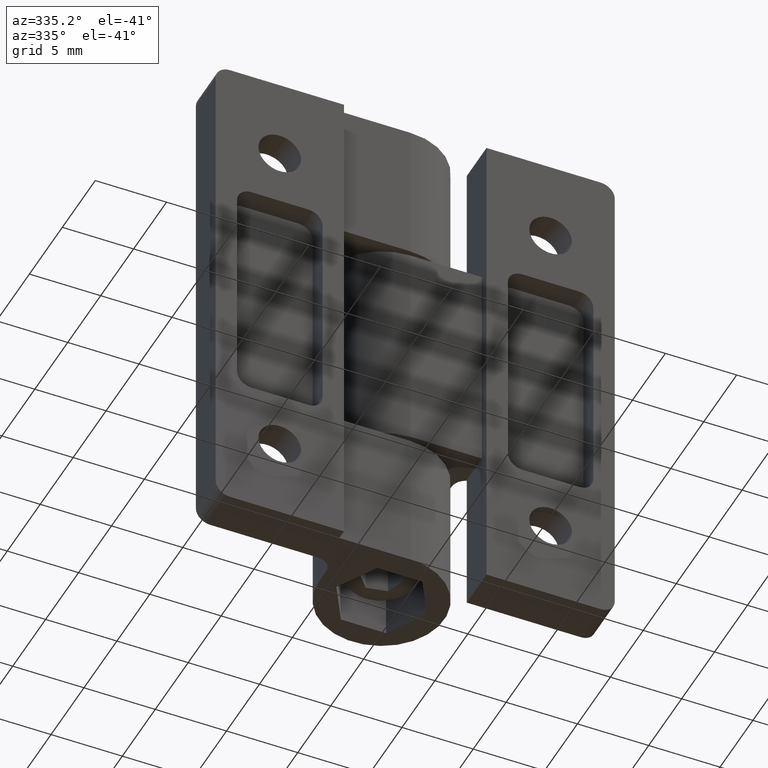
[diagram: clean part render]
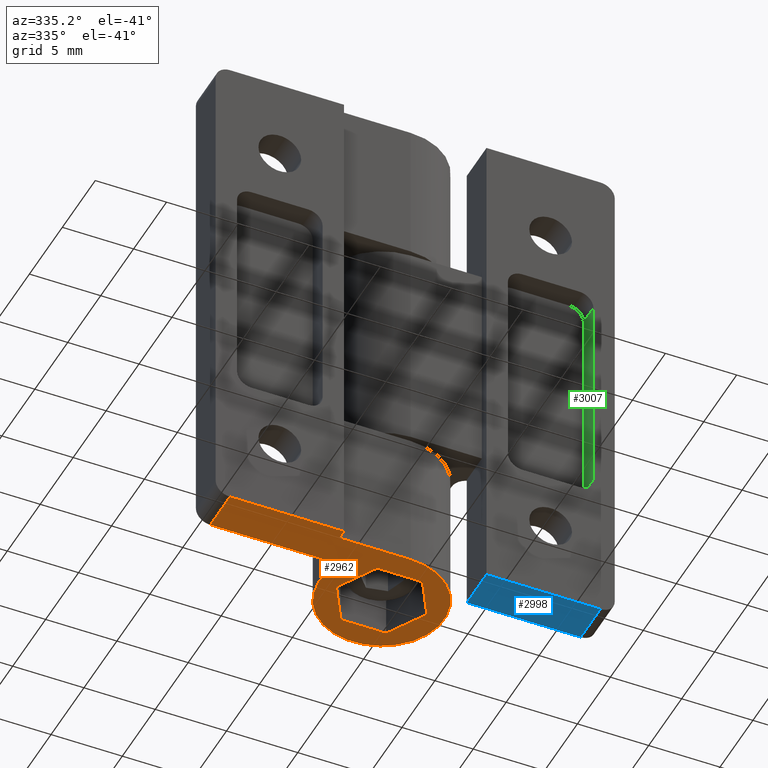
[diagram: same view with three faces highlighted in distinct colors, each labeled with its STEP entity id]
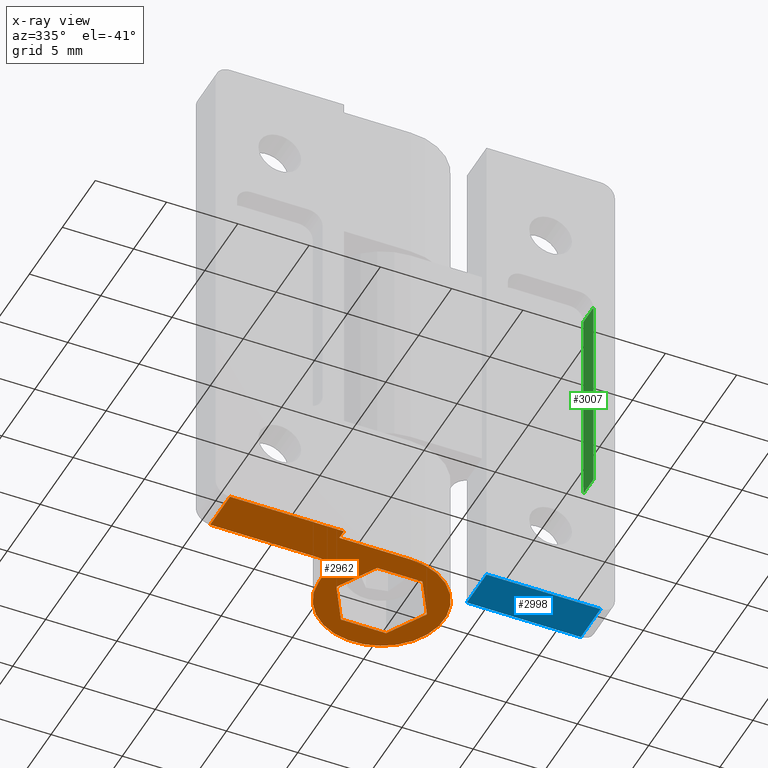
[diagram: x-ray of the same camera — body ghosted, the three highlighted faces saturated]
A machine part, auxiliary view with three faces highlighted in distinct colors.
The next image is the same camera in x-ray (body ghosted, the three faces saturated) — at least one of them is partly hidden behind the body in this view.
Their STEP definitions:

[orange] entity #2962 — the highlighted planar face has unit normal (0, 0, -1).
#320=FACE_BOUND('',#587,.T.);
#374=PLANE('',#3109);
#458=FACE_OUTER_BOUND('',#586,.T.);
#586=EDGE_LOOP('',(#2154,#2155,#2156,#2157,#2158,#2159,#2160,#2161));
#587=EDGE_LOOP('',(#2162,#2163,#2164,#2165,#2166,#2167));
#670=LINE('',#3745,#826);
#679=LINE('',#3766,#835);
#694=LINE('',#3816,#850);
#700=LINE('',#3832,#856);
#703=LINE('',#3838,#859);
#733=LINE('',#3944,#889);
#739=LINE('',#3955,#895);
#741=LINE('',#3959,#897);
#742=LINE('',#3962,#898);
#747=LINE('',#3971,#903);
#748=LINE('',#3973,#904);
#757=LINE('',#3991,#913);
#826=VECTOR('',#3219,3.);
#835=VECTOR('',#3234,7.6);
#850=VECTOR('',#3283,1.1);
#856=VECTOR('',#3301,5.);
#859=VECTOR('',#3306,0.7);
#889=VECTOR('',#3412,3.1754264805516);
#895=VECTOR('',#3422,3.1754264805515);
#897=VECTOR('',#3426,3.1754264805516);
#898=VECTOR('',#3429,3.17542648055159);
#903=VECTOR('',#3438,3.1754264805516);
#904=VECTOR('',#3441,3.1754264805515);
#913=VECTOR('',#3462,8.);
#989=CIRCLE('',#3041,1.);
#996=CIRCLE('',#3054,4.4);
#1055=VERTEX_POINT('',#3742);
#1056=VERTEX_POINT('',#3744);
#1065=VERTEX_POINT('',#3764);
#1071=VERTEX_POINT('',#3782);
#1083=VERTEX_POINT('',#3814);
#1085=VERTEX_POINT('',#3822);
#1087=VERTEX_POINT('',#3830);
#1089=VERTEX_POINT('',#3836);
#1126=VERTEX_POINT('',#3941);
#1127=VERTEX_POINT('',#3943);
#1130=VERTEX_POINT('',#3953);
#1131=VERTEX_POINT('',#3957);
#1132=VERTEX_POINT('',#3961);
#1134=VERTEX_POINT('',#3969);
#1453=EDGE_CURVE('',#1055,#1056,#670,.T.);
#1464=EDGE_CURVE('',#1055,#1065,#679,.T.);
#1473=EDGE_CURVE('',#1071,#1065,#989,.T.);
#1489=EDGE_CURVE('',#1071,#1083,#694,.T.);
#1493=EDGE_CURVE('',#1083,#1085,#996,.T.);
#1497=EDGE_CURVE('',#1085,#1087,#700,.T.);
#1500=EDGE_CURVE('',#1087,#1089,#703,.T.);
#1547=EDGE_CURVE('',#1127,#1126,#733,.T.);
#1553=EDGE_CURVE('',#1126,#1130,#739,.T.);
#1555=EDGE_CURVE('',#1130,#1131,#741,.T.);
#1556=EDGE_CURVE('',#1132,#1127,#742,.T.);
#1561=EDGE_CURVE('',#1131,#1134,#747,.T.);
#1562=EDGE_CURVE('',#1134,#1132,#748,.T.);
#1571=EDGE_CURVE('',#1089,#1056,#757,.T.);
#2154=ORIENTED_EDGE('',*,*,#1453,.F.);
#2155=ORIENTED_EDGE('',*,*,#1464,.T.);
#2156=ORIENTED_EDGE('',*,*,#1473,.F.);
#2157=ORIENTED_EDGE('',*,*,#1489,.T.);
#2158=ORIENTED_EDGE('',*,*,#1493,.T.);
#2159=ORIENTED_EDGE('',*,*,#1497,.T.);
#2160=ORIENTED_EDGE('',*,*,#1500,.T.);
#2161=ORIENTED_EDGE('',*,*,#1571,.T.);
#2162=ORIENTED_EDGE('',*,*,#1556,.T.);
#2163=ORIENTED_EDGE('',*,*,#1547,.T.);
#2164=ORIENTED_EDGE('',*,*,#1553,.T.);
#2165=ORIENTED_EDGE('',*,*,#1555,.T.);
#2166=ORIENTED_EDGE('',*,*,#1561,.T.);
#2167=ORIENTED_EDGE('',*,*,#1562,.T.);
#2962=ADVANCED_FACE('',(#458,#320),#374,.T.);
#3041=AXIS2_PLACEMENT_3D('',#3784,#3253,#3254);
#3054=AXIS2_PLACEMENT_3D('',#3824,#3292,#3293);
#3109=AXIS2_PLACEMENT_3D('',#3992,#3463,#3464);
#3219=DIRECTION('',(-6.12323399573677E-17,0.,-1.));
#3234=DIRECTION('',(1.,0.,5.78241158658936E-17));
#3253=DIRECTION('center_axis',(0.,1.,0.));
#3254=DIRECTION('ref_axis',(0.707106781186547,0.,-0.707106781186548));
#3283=DIRECTION('',(0.,0.,1.));
#3292=DIRECTION('center_axis',(0.,1.,0.));
#3293=DIRECTION('ref_axis',(1.,0.,0.));
#3301=DIRECTION('',(-1.,0.,8.32667268468867E-17));
#3306=DIRECTION('',(0.,0.,-1.));
#3412=DIRECTION('',(-0.500000000008138,0.,0.86602540377974));
#3422=DIRECTION('',(-1.,0.,-9.39594531522394E-12));
#3426=DIRECTION('',(-0.499999999991863,0.,-0.866025403789137));
#3429=DIRECTION('',(0.499999999991862,0.,0.866025403789137));
#3438=DIRECTION('',(0.500000000008137,0.,-0.866025403779741));
#3441=DIRECTION('',(1.,0.,9.39577050043426E-12));
#3462=DIRECTION('',(-1.,0.,1.71193772834421E-33));
#3463=DIRECTION('center_axis',(0.,1.,0.));
#3464=DIRECTION('ref_axis',(1.,0.,0.));
#3742=CARTESIAN_POINT('',(1.,18.,3.));
#3744=CARTESIAN_POINT('',(1.,18.,-1.71193772834421E-33));
#3745=CARTESIAN_POINT('',(1.,18.,2.375));
#3764=CARTESIAN_POINT('',(8.6,18.,3.));
#3766=CARTESIAN_POINT('',(9.6,18.,3.));
#3782=CARTESIAN_POINT('',(9.6,18.,4.));
#3784=CARTESIAN_POINT('Origin',(8.6,18.,4.));
#3814=CARTESIAN_POINT('',(9.6,18.,5.1));
#3816=CARTESIAN_POINT('',(9.6,18.,5.1));
#3822=CARTESIAN_POINT('',(14.,18.,0.699999999999999));
#3824=CARTESIAN_POINT('Origin',(14.,18.,5.1));
#3830=CARTESIAN_POINT('',(9.,18.,0.7));
#3832=CARTESIAN_POINT('',(9.,18.,0.7));
#3836=CARTESIAN_POINT('',(9.,18.,0.));
#3838=CARTESIAN_POINT('',(9.,18.,-1.54074395550979E-32));
#3941=CARTESIAN_POINT('',(15.5877132402499,18.,7.85000000002238));
#3943=CARTESIAN_POINT('',(17.1754264805516,18.,5.10000000002984));
#3944=CARTESIAN_POINT('',(15.5877132402499,18.,7.85000000002238));
#3953=CARTESIAN_POINT('',(12.4122867596984,18.,7.84999999999255));
#3955=CARTESIAN_POINT('',(12.4122867596984,18.,7.84999999999255));
#3957=CARTESIAN_POINT('',(10.8245735194484,18.,5.09999999997016));
#3959=CARTESIAN_POINT('',(10.8245735194484,18.,5.09999999997016));
#3961=CARTESIAN_POINT('',(15.5877132403016,18.,2.35000000000745));
#3962=CARTESIAN_POINT('',(17.1754264805516,18.,5.10000000002984));
#3969=CARTESIAN_POINT('',(12.4122867597501,18.,2.34999999997762));
#3971=CARTESIAN_POINT('',(12.4122867597501,18.,2.34999999997762));
#3973=CARTESIAN_POINT('',(15.5877132403016,18.,2.35000000000745));
#3991=CARTESIAN_POINT('',(0.,18.,0.));
#3992=CARTESIAN_POINT('Origin',(9.2,18.,4.75));

[blue] entity #2998 — the highlighted planar face has unit normal (0, 0, 1).
#395=PLANE('',#3162);
#494=FACE_OUTER_BOUND('',#632,.T.);
#632=EDGE_LOOP('',(#2764,#2765,#2766,#2767));
#788=LINE('',#33450,#944);
#794=LINE('',#33468,#950);
#796=LINE('',#33472,#952);
#797=LINE('',#33473,#953);
#944=VECTOR('',#3591,8.);
#950=VECTOR('',#3605,3.);
#952=VECTOR('',#3609,8.);
#953=VECTOR('',#3610,3.);
#1409=VERTEX_POINT('',#33447);
#1410=VERTEX_POINT('',#33449);
#1418=VERTEX_POINT('',#33466);
#1419=VERTEX_POINT('',#33471);
#1867=EDGE_CURVE('',#1410,#1409,#788,.T.);
#1876=EDGE_CURVE('',#1418,#1409,#794,.T.);
#1878=EDGE_CURVE('',#1418,#1419,#796,.T.);
#1879=EDGE_CURVE('',#1419,#1410,#797,.T.);
#2764=ORIENTED_EDGE('',*,*,#1876,.F.);
#2765=ORIENTED_EDGE('',*,*,#1878,.T.);
#2766=ORIENTED_EDGE('',*,*,#1879,.T.);
#2767=ORIENTED_EDGE('',*,*,#1867,.T.);
#2998=ADVANCED_FACE('',(#494),#395,.F.);
#3162=AXIS2_PLACEMENT_3D('',#33470,#3607,#3608);
#3591=DIRECTION('',(-1.,0.,-5.78241158658936E-17));
#3605=DIRECTION('',(6.12323399573677E-17,0.,1.));
#3607=DIRECTION('center_axis',(0.,1.,0.));
#3608=DIRECTION('ref_axis',(1.,0.,0.));
#3609=DIRECTION('',(1.,0.,-1.71193772834421E-33));
#3610=DIRECTION('',(0.,0.,1.));
#33447=CARTESIAN_POINT('',(31.9262510638286,-18.,3.));
#33449=CARTESIAN_POINT('',(39.9262510638286,-18.,3.));
#33450=CARTESIAN_POINT('',(40.5262510638286,-18.,3.));
#33466=CARTESIAN_POINT('',(31.9262510638286,-18.,-1.71193772834421E-33));
#33468=CARTESIAN_POINT('',(31.9262510638286,-18.,2.375));
#33470=CARTESIAN_POINT('Origin',(40.1262510638286,-18.,4.75));
#33471=CARTESIAN_POINT('',(39.9262510638286,-18.,0.));
#33472=CARTESIAN_POINT('',(30.9262510638286,-18.,0.));
#33473=CARTESIAN_POINT('',(39.9262510638286,-18.,-1.54074395550979E-32));

[green] entity #3007 — the highlighted planar face has unit normal (1, 0, 0).
#400=PLANE('',#3183);
#503=FACE_OUTER_BOUND('',#643,.T.);
#643=EDGE_LOOP('',(#2806,#2807,#2808,#2809));
#810=LINE('',#33520,#966);
#815=LINE('',#33535,#971);
#816=LINE('',#33537,#972);
#817=LINE('',#33538,#973);
#966=VECTOR('',#3653,1.5);
#971=VECTOR('',#3668,1.5);
#972=VECTOR('',#3671,14.5);
#973=VECTOR('',#3672,14.5);
#1436=VERTEX_POINT('',#33516);
#1438=VERTEX_POINT('',#33519);
#1441=VERTEX_POINT('',#33529);
#1443=VERTEX_POINT('',#33533);
#1901=EDGE_CURVE('',#1436,#1438,#810,.T.);
#1909=EDGE_CURVE('',#1443,#1441,#815,.T.);
#1910=EDGE_CURVE('',#1436,#1441,#816,.T.);
#1911=EDGE_CURVE('',#1438,#1443,#817,.T.);
#2806=ORIENTED_EDGE('',*,*,#1901,.F.);
#2807=ORIENTED_EDGE('',*,*,#1910,.T.);
#2808=ORIENTED_EDGE('',*,*,#1909,.F.);
#2809=ORIENTED_EDGE('',*,*,#1911,.F.);
#3007=ADVANCED_FACE('',(#503),#400,.F.);
#3183=AXIS2_PLACEMENT_3D('',#33536,#3669,#3670);
#3653=DIRECTION('',(0.,0.,-1.));
#3668=DIRECTION('',(0.,0.,1.));
#3669=DIRECTION('center_axis',(-1.,0.,0.));
#3670=DIRECTION('ref_axis',(0.,-1.,0.));
#3671=DIRECTION('',(0.,-1.,0.));
#3672=DIRECTION('',(0.,-1.,0.));
#33516=CARTESIAN_POINT('',(32.4262510638286,7.25,1.5));
#33519=CARTESIAN_POINT('',(32.4262510638286,7.25,-2.56790659251631E-33));
#33520=CARTESIAN_POINT('',(32.4262510638286,7.25,-7.70371977754895E-33));
#33529=CARTESIAN_POINT('',(32.4262510638286,-7.25,1.5));
#33533=CARTESIAN_POINT('',(32.4262510638286,-7.25,-2.56790659251631E-33));
#33535=CARTESIAN_POINT('',(32.4262510638286,-7.25,-2.56790659251632E-33));
#33536=CARTESIAN_POINT('Origin',(32.4262510638286,8.25,-2.56790659251632E-33));
#33537=CARTESIAN_POINT('',(32.4262510638286,8.25,1.5));
#33538=CARTESIAN_POINT('',(32.4262510638286,4.125,-2.56790659251631E-33));